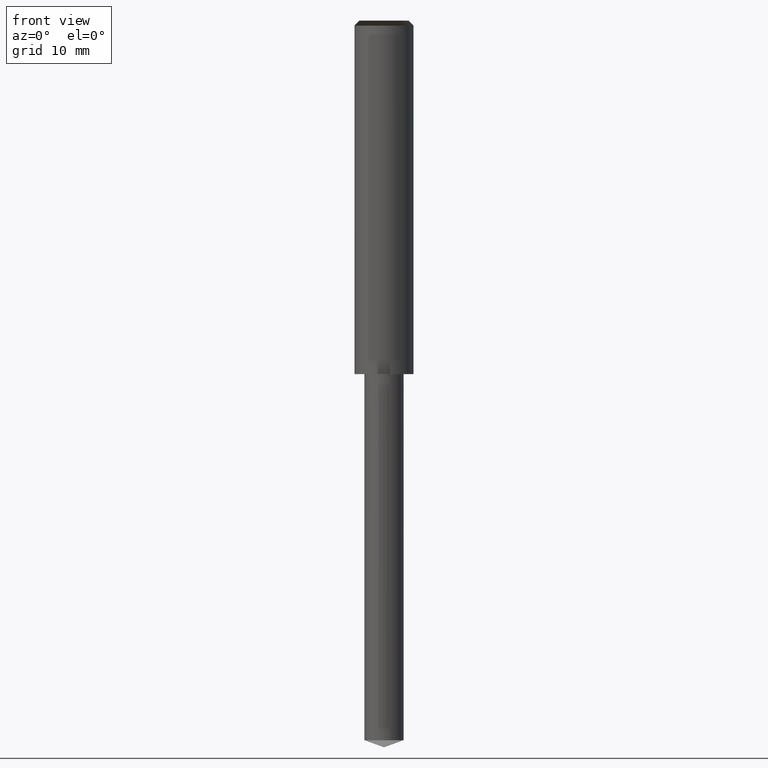
[diagram: clean part render]
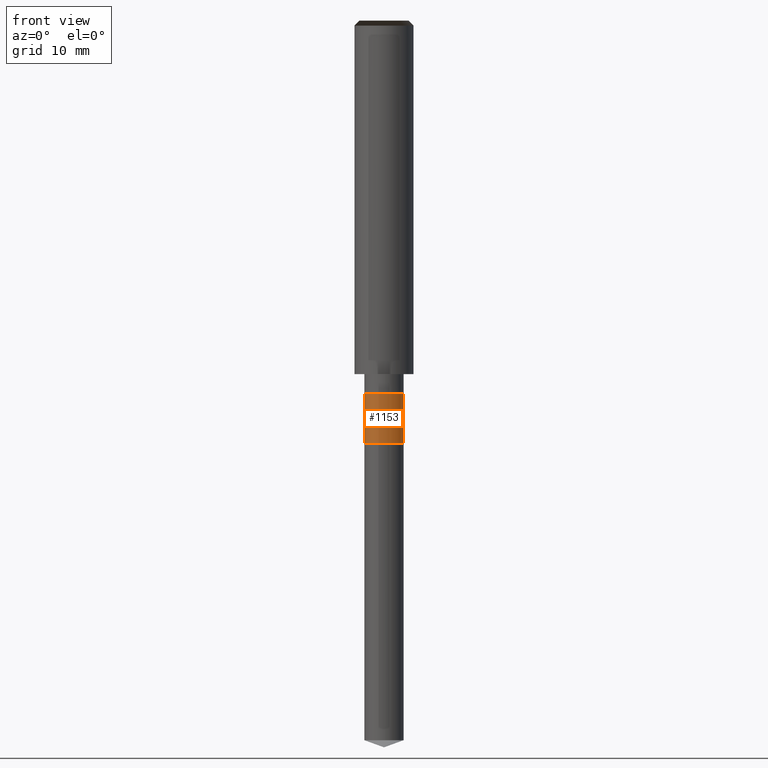
[diagram: same view with one face highlighted and labeled with its STEP entity id]
A machine part, front view. The second image highlights one B-rep face of the part: STEP entity #1153.
In plain terms, the highlighted face is a freeform B-spline surface patch.
Its self-contained STEP definition (entity closure, byte-faithful):
#820=CARTESIAN_POINT('',(2.0,0.0,-7.0));
#824=CARTESIAN_POINT('',(-2.0,0.0,-7.0));
#829=CARTESIAN_POINT('',(-2.0,-2.0,-7.0));
#830=CARTESIAN_POINT('',(0.0,-2.0,-7.0));
#831=CARTESIAN_POINT('',(2.0,-2.0,-7.0));
#832=CARTESIAN_POINT('',(2.0,0.0,-2.0));
#836=CARTESIAN_POINT('',(-2.0,0.0,-2.0));
#858=CARTESIAN_POINT('',(-2.0,-2.0,-2.0));
#859=CARTESIAN_POINT('',(0.0,-2.0,-2.0));
#860=CARTESIAN_POINT('',(2.0,-2.0,-2.0));
#1134=(
BOUNDED_SURFACE()
B_SPLINE_SURFACE(1,2,(
(#824,#829,#830,#831,#820),
(#836,#858,#859,#860,#832)
), .UNSPECIFIED.,.F.,.F.,.F.)
B_SPLINE_SURFACE_WITH_KNOTS((2,2),(3,2,3),(
0.0,1.0),(
0.0,0.5,1.0), .UNSPECIFIED.)
GEOMETRIC_REPRESENTATION_ITEM()
RATIONAL_B_SPLINE_SURFACE(((1.0,0.707106781187,1.0,0.707106781187,1.0),
(1.0,0.707106781187,1.0,0.707106781187,1.0)
))
REPRESENTATION_ITEM('')
SURFACE()
);
#1135=(
BOUNDED_CURVE()
B_SPLINE_CURVE(2,(#820,#831,#830,#829,#824),.UNSPECIFIED.,.F.,.F.)
B_SPLINE_CURVE_WITH_KNOTS((3,2,3),
(0.0,0.5,1.0),.UNSPECIFIED.)
CURVE()
GEOMETRIC_REPRESENTATION_ITEM()
RATIONAL_B_SPLINE_CURVE((1.0,0.707106781187,1.0,0.707106781187,1.0))
REPRESENTATION_ITEM('')
);
#1136=(
BOUNDED_CURVE()
B_SPLINE_CURVE(1,(#824,#836),.UNSPECIFIED.,.F.,.F.)
B_SPLINE_CURVE_WITH_KNOTS((2,2),
(0.0,1.0),.UNSPECIFIED.)
CURVE()
GEOMETRIC_REPRESENTATION_ITEM()
RATIONAL_B_SPLINE_CURVE((1.0,1.0))
REPRESENTATION_ITEM('')
);
#1137=(
BOUNDED_CURVE()
B_SPLINE_CURVE(2,(#836,#858,#859,#860,#832),.UNSPECIFIED.,.F.,.F.)
B_SPLINE_CURVE_WITH_KNOTS((3,2,3),
(0.0,0.5,1.0),.UNSPECIFIED.)
CURVE()
GEOMETRIC_REPRESENTATION_ITEM()
RATIONAL_B_SPLINE_CURVE((1.0,0.707106781187,1.0,0.707106781187,1.0))
REPRESENTATION_ITEM('')
);
#1138=(
BOUNDED_CURVE()
B_SPLINE_CURVE(1,(#832,#820),.UNSPECIFIED.,.F.,.F.)
B_SPLINE_CURVE_WITH_KNOTS((2,2),
(0.0,1.0),.UNSPECIFIED.)
CURVE()
GEOMETRIC_REPRESENTATION_ITEM()
RATIONAL_B_SPLINE_CURVE((1.0,1.0))
REPRESENTATION_ITEM('')
);
#1139=VERTEX_POINT('',#820);
#1140=VERTEX_POINT('',#824);
#1141=VERTEX_POINT('',#832);
#1142=VERTEX_POINT('',#836);
#1143=EDGE_CURVE('',#1139,#1140,#1135,.T.);
#1144=EDGE_CURVE('',#1140,#1142,#1136,.T.);
#1145=EDGE_CURVE('',#1142,#1141,#1137,.T.);
#1146=EDGE_CURVE('',#1141,#1139,#1138,.T.);
#1147=ORIENTED_EDGE('',*,*,#1143,.T.);
#1148=ORIENTED_EDGE('',*,*,#1144,.T.);
#1149=ORIENTED_EDGE('',*,*,#1145,.T.);
#1150=ORIENTED_EDGE('',*,*,#1146,.T.);
#1151=EDGE_LOOP('',(#1147,#1148,#1149,#1150));
#1152=FACE_OUTER_BOUND('',#1151,.T.);
#1153=ADVANCED_FACE('',(#1152),#1134,.T.);